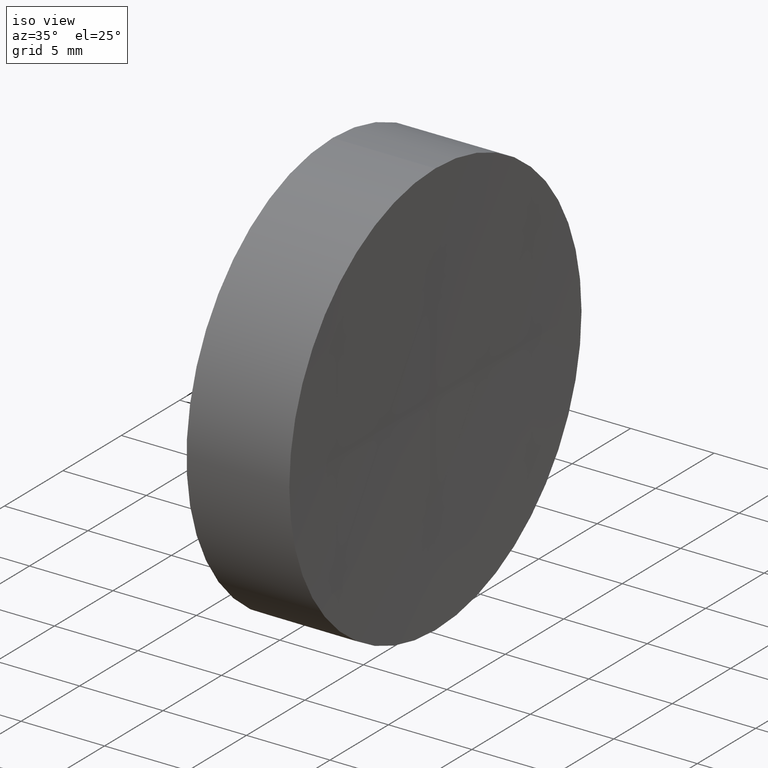
[diagram: clean part render]
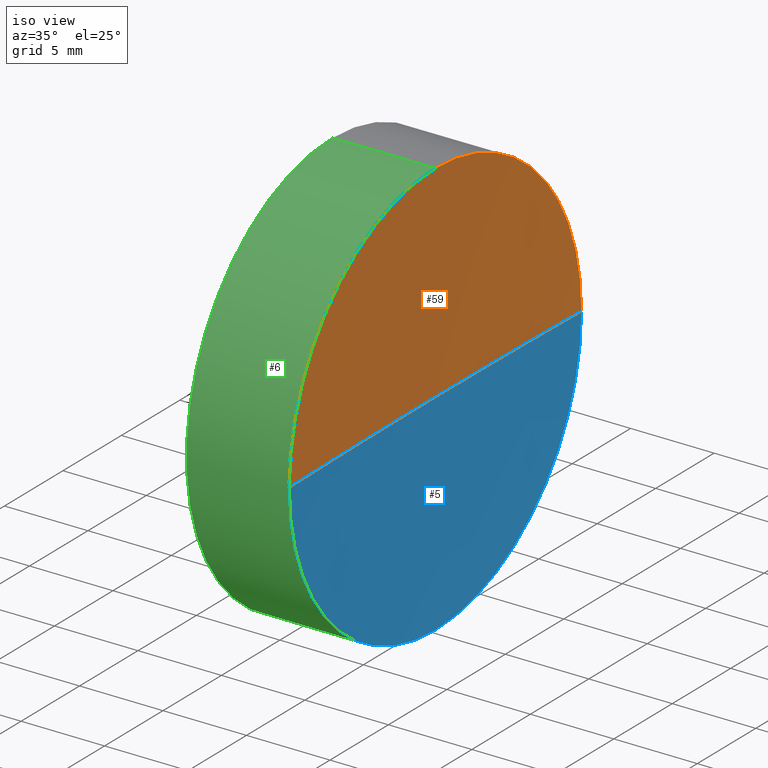
[diagram: same view with three faces highlighted in distinct colors, each labeled with its STEP entity id]
A machine part, iso view with three faces highlighted in distinct colors.
Their STEP definitions:

[orange] entity #59 — the highlighted spherical surface has radius 500 mm.
#4 = CIRCLE ( 'NONE', #9, 500.0000000000000000 ) ;
#8 = EDGE_CURVE ( 'NONE', #36, #23, #4, .T. ) ;
#9 = AXIS2_PLACEMENT_3D ( 'NONE', #10, #167, #150 ) ;
#10 = CARTESIAN_POINT ( 'NONE',  ( 621.0926555117259800, 69.37802112337145400, 0.0000000000000000000 ) ) ;
#12 = SPHERICAL_SURFACE ( 'NONE', #81, 500.0000000000000000 ) ;
#14 = DIRECTION ( 'NONE',  ( 0.0000000000000000000, 0.0000000000000000000, 1.000000000000000000 ) ) ;
#23 = VERTEX_POINT ( 'NONE', #180 ) ;
#29 = DIRECTION ( 'NONE',  ( -1.000000000000000000, -0.0000000000000000000, -0.0000000000000000000 ) ) ;
#30 = CARTESIAN_POINT ( 'NONE',  ( 621.0926555117259800, 69.37802112337145400, 0.0000000000000000000 ) ) ;
#34 = CIRCLE ( 'NONE', #116, 12.50000000000002500 ) ;
#36 = VERTEX_POINT ( 'NONE', #64 ) ;
#45 = DIRECTION ( 'NONE',  ( 0.0000000000000000000, 1.000000000000000000, 0.0000000000000000000 ) ) ;
#46 = ORIENTED_EDGE ( 'NONE', *, *, #71, .F. ) ;
#52 = CARTESIAN_POINT ( 'NONE',  ( 121.2489299334208700, 69.37802112337243400, 0.0000000000000000000 ) ) ;
#56 = VERTEX_POINT ( 'NONE', #77 ) ;
#59 = ADVANCED_FACE ( 'NONE', ( #101 ), #12, .F. ) ;
#61 = EDGE_CURVE ( 'NONE', #129, #36, #143, .T. ) ;
#64 = CARTESIAN_POINT ( 'NONE',  ( 121.2489299334208500, 81.87802112337134000, 0.0000000000000000000 ) ) ;
#71 = EDGE_CURVE ( 'NONE', #56, #129, #34, .T. ) ;
#77 = CARTESIAN_POINT ( 'NONE',  ( 121.2489299334208500, 56.87802112337254800, -1.530808498934056000E-015 ) ) ;
#81 = AXIS2_PLACEMENT_3D ( 'NONE', #106, #133, #45 ) ;
#89 = ORIENTED_EDGE ( 'NONE', *, *, #61, .F. ) ;
#98 = CARTESIAN_POINT ( 'NONE',  ( 121.2489299334208700, 69.37802112337243400, 0.0000000000000000000 ) ) ;
#101 = FACE_OUTER_BOUND ( 'NONE', #147, .T. ) ;
#106 = CARTESIAN_POINT ( 'NONE',  ( 621.0926555117259800, 69.37802112337145400, 0.0000000000000000000 ) ) ;
#108 = AXIS2_PLACEMENT_3D ( 'NONE', #98, #152, #14 ) ;
#112 = DIRECTION ( 'NONE',  ( 0.0000000000000000000, 0.0000000000000000000, 1.000000000000000000 ) ) ;
#116 = AXIS2_PLACEMENT_3D ( 'NONE', #52, #29, #112 ) ;
#119 = DIRECTION ( 'NONE',  ( 0.0000000000000000000, 1.224646799147353200E-016, -1.000000000000000000 ) ) ;
#129 = VERTEX_POINT ( 'NONE', #153 ) ;
#133 = DIRECTION ( 'NONE',  ( 0.0000000000000000000, 0.0000000000000000000, -1.000000000000000000 ) ) ;
#143 = CIRCLE ( 'NONE', #108, 12.50000000000002500 ) ;
#144 = ORIENTED_EDGE ( 'NONE', *, *, #160, .T. ) ;
#147 = EDGE_LOOP ( 'NONE', ( #46, #144, #163, #89 ) ) ;
#148 = AXIS2_PLACEMENT_3D ( 'NONE', #30, #119, #174 ) ;
#150 = DIRECTION ( 'NONE',  ( 1.000000000000000000, 0.0000000000000000000, 0.0000000000000000000 ) ) ;
#152 = DIRECTION ( 'NONE',  ( -1.000000000000000000, -0.0000000000000000000, -0.0000000000000000000 ) ) ;
#153 = CARTESIAN_POINT ( 'NONE',  ( 121.2489299334208700, 69.37802112337243400, 12.50000000000002500 ) ) ;
#160 = EDGE_CURVE ( 'NONE', #56, #23, #177, .T. ) ;
#163 = ORIENTED_EDGE ( 'NONE', *, *, #8, .F. ) ;
#167 = DIRECTION ( 'NONE',  ( 0.0000000000000000000, 0.0000000000000000000, 1.000000000000000000 ) ) ;
#174 = DIRECTION ( 'NONE',  ( 0.0000000000000000000, 1.000000000000000000, 1.224646799147353200E-016 ) ) ;
#177 = CIRCLE ( 'NONE', #148, 500.0000000000000000 ) ;
#180 = CARTESIAN_POINT ( 'NONE',  ( 121.0926555117259900, 69.37802112337148200, 0.0000000000000000000 ) ) ;

[blue] entity #5 — the highlighted spherical surface has radius 500 mm.
#4 = CIRCLE ( 'NONE', #9, 500.0000000000000000 ) ;
#5 = ADVANCED_FACE ( 'NONE', ( #158 ), #87, .F. ) ;
#8 = EDGE_CURVE ( 'NONE', #36, #23, #4, .T. ) ;
#9 = AXIS2_PLACEMENT_3D ( 'NONE', #10, #167, #150 ) ;
#10 = CARTESIAN_POINT ( 'NONE',  ( 621.0926555117259800, 69.37802112337145400, 0.0000000000000000000 ) ) ;
#18 = EDGE_LOOP ( 'NONE', ( #33, #139, #54, #132 ) ) ;
#21 = EDGE_CURVE ( 'NONE', #123, #56, #99, .T. ) ;
#23 = VERTEX_POINT ( 'NONE', #180 ) ;
#25 = DIRECTION ( 'NONE',  ( 0.0000000000000000000, 0.0000000000000000000, -1.000000000000000000 ) ) ;
#26 = DIRECTION ( 'NONE',  ( -1.000000000000000000, -0.0000000000000000000, -0.0000000000000000000 ) ) ;
#30 = CARTESIAN_POINT ( 'NONE',  ( 621.0926555117259800, 69.37802112337145400, 0.0000000000000000000 ) ) ;
#33 = ORIENTED_EDGE ( 'NONE', *, *, #160, .F. ) ;
#36 = VERTEX_POINT ( 'NONE', #64 ) ;
#48 = CARTESIAN_POINT ( 'NONE',  ( 621.0926555117259800, 69.37802112337145400, 0.0000000000000000000 ) ) ;
#53 = AXIS2_PLACEMENT_3D ( 'NONE', #117, #26, #105 ) ;
#54 = ORIENTED_EDGE ( 'NONE', *, *, #135, .F. ) ;
#56 = VERTEX_POINT ( 'NONE', #77 ) ;
#64 = CARTESIAN_POINT ( 'NONE',  ( 121.2489299334208500, 81.87802112337134000, 0.0000000000000000000 ) ) ;
#66 = DIRECTION ( 'NONE',  ( 0.0000000000000000000, 1.000000000000000000, 0.0000000000000000000 ) ) ;
#70 = DIRECTION ( 'NONE',  ( 0.0000000000000000000, 0.0000000000000000000, 1.000000000000000000 ) ) ;
#77 = CARTESIAN_POINT ( 'NONE',  ( 121.2489299334208500, 56.87802112337254800, -1.530808498934056000E-015 ) ) ;
#78 = DIRECTION ( 'NONE',  ( -1.000000000000000000, -0.0000000000000000000, -0.0000000000000000000 ) ) ;
#82 = CARTESIAN_POINT ( 'NONE',  ( 121.2489299334208700, 69.37802112337243400, -12.50000000000002500 ) ) ;
#87 = SPHERICAL_SURFACE ( 'NONE', #156, 500.0000000000000000 ) ;
#97 = CARTESIAN_POINT ( 'NONE',  ( 121.2489299334208700, 69.37802112337243400, 0.0000000000000000000 ) ) ;
#99 = CIRCLE ( 'NONE', #53, 12.50000000000002500 ) ;
#105 = DIRECTION ( 'NONE',  ( 0.0000000000000000000, 0.0000000000000000000, 1.000000000000000000 ) ) ;
#117 = CARTESIAN_POINT ( 'NONE',  ( 121.2489299334208700, 69.37802112337243400, 0.0000000000000000000 ) ) ;
#119 = DIRECTION ( 'NONE',  ( 0.0000000000000000000, 1.224646799147353200E-016, -1.000000000000000000 ) ) ;
#123 = VERTEX_POINT ( 'NONE', #82 ) ;
#128 = AXIS2_PLACEMENT_3D ( 'NONE', #97, #78, #70 ) ;
#132 = ORIENTED_EDGE ( 'NONE', *, *, #8, .T. ) ;
#135 = EDGE_CURVE ( 'NONE', #36, #123, #145, .T. ) ;
#139 = ORIENTED_EDGE ( 'NONE', *, *, #21, .F. ) ;
#145 = CIRCLE ( 'NONE', #128, 12.50000000000002500 ) ;
#148 = AXIS2_PLACEMENT_3D ( 'NONE', #30, #119, #174 ) ;
#150 = DIRECTION ( 'NONE',  ( 1.000000000000000000, 0.0000000000000000000, 0.0000000000000000000 ) ) ;
#156 = AXIS2_PLACEMENT_3D ( 'NONE', #48, #25, #66 ) ;
#158 = FACE_OUTER_BOUND ( 'NONE', #18, .T. ) ;
#160 = EDGE_CURVE ( 'NONE', #56, #23, #177, .T. ) ;
#167 = DIRECTION ( 'NONE',  ( 0.0000000000000000000, 0.0000000000000000000, 1.000000000000000000 ) ) ;
#174 = DIRECTION ( 'NONE',  ( 0.0000000000000000000, 1.000000000000000000, 1.224646799147353200E-016 ) ) ;
#177 = CIRCLE ( 'NONE', #148, 500.0000000000000000 ) ;
#180 = CARTESIAN_POINT ( 'NONE',  ( 121.0926555117259900, 69.37802112337148200, 0.0000000000000000000 ) ) ;

[green] entity #6 — the highlighted cylindrical surface (partial cylindrical patch) has radius 12.5 mm, axis along (-1, -0, -0).
#1 = CARTESIAN_POINT ( 'NONE',  ( 115.0926555349195200, 69.37802112337243400, -12.49999999999999600 ) ) ;
#6 = ADVANCED_FACE ( 'NONE', ( #107 ), #186, .T. ) ;
#11 = DIRECTION ( 'NONE',  ( -1.000000000000000000, -0.0000000000000000000, -0.0000000000000000000 ) ) ;
#13 = VERTEX_POINT ( 'NONE', #103 ) ;
#19 = EDGE_CURVE ( 'NONE', #94, #13, #79, .T. ) ;
#21 = EDGE_CURVE ( 'NONE', #123, #56, #99, .T. ) ;
#26 = DIRECTION ( 'NONE',  ( -1.000000000000000000, -0.0000000000000000000, -0.0000000000000000000 ) ) ;
#28 = CARTESIAN_POINT ( 'NONE',  ( 108.9851430021651000, 69.37802112337243400, 12.50000000000001100 ) ) ;
#29 = DIRECTION ( 'NONE',  ( -1.000000000000000000, -0.0000000000000000000, -0.0000000000000000000 ) ) ;
#32 = VECTOR ( 'NONE', #124, 1000.000000000000000 ) ;
#34 = CIRCLE ( 'NONE', #116, 12.50000000000002500 ) ;
#37 = DIRECTION ( 'NONE',  ( -1.000000000000000000, -0.0000000000000000000, -0.0000000000000000000 ) ) ;
#52 = CARTESIAN_POINT ( 'NONE',  ( 121.2489299334208700, 69.37802112337243400, 0.0000000000000000000 ) ) ;
#53 = AXIS2_PLACEMENT_3D ( 'NONE', #117, #26, #105 ) ;
#56 = VERTEX_POINT ( 'NONE', #77 ) ;
#60 = LINE ( 'NONE', #155, #32 ) ;
#63 = AXIS2_PLACEMENT_3D ( 'NONE', #92, #93, #104 ) ;
#65 = ORIENTED_EDGE ( 'NONE', *, *, #21, .T. ) ;
#71 = EDGE_CURVE ( 'NONE', #56, #129, #34, .T. ) ;
#73 = AXIS2_PLACEMENT_3D ( 'NONE', #149, #11, #168 ) ;
#76 = EDGE_CURVE ( 'NONE', #129, #13, #136, .T. ) ;
#77 = CARTESIAN_POINT ( 'NONE',  ( 121.2489299334208500, 56.87802112337254800, -1.530808498934056000E-015 ) ) ;
#79 = CIRCLE ( 'NONE', #63, 12.49999999999999600 ) ;
#82 = CARTESIAN_POINT ( 'NONE',  ( 121.2489299334208700, 69.37802112337243400, -12.50000000000002500 ) ) ;
#92 = CARTESIAN_POINT ( 'NONE',  ( 115.0926555349195200, 69.37802112337243400, 0.0000000000000000000 ) ) ;
#93 = DIRECTION ( 'NONE',  ( -1.000000000000000000, -0.0000000000000000000, -0.0000000000000000000 ) ) ;
#94 = VERTEX_POINT ( 'NONE', #1 ) ;
#99 = CIRCLE ( 'NONE', #53, 12.50000000000002500 ) ;
#103 = CARTESIAN_POINT ( 'NONE',  ( 115.0926555349195200, 69.37802112337243400, 12.49999999999999600 ) ) ;
#104 = DIRECTION ( 'NONE',  ( 0.0000000000000000000, 0.0000000000000000000, 1.000000000000000000 ) ) ;
#105 = DIRECTION ( 'NONE',  ( 0.0000000000000000000, 0.0000000000000000000, 1.000000000000000000 ) ) ;
#107 = FACE_OUTER_BOUND ( 'NONE', #131, .T. ) ;
#112 = DIRECTION ( 'NONE',  ( 0.0000000000000000000, 0.0000000000000000000, 1.000000000000000000 ) ) ;
#116 = AXIS2_PLACEMENT_3D ( 'NONE', #52, #29, #112 ) ;
#117 = CARTESIAN_POINT ( 'NONE',  ( 121.2489299334208700, 69.37802112337243400, 0.0000000000000000000 ) ) ;
#123 = VERTEX_POINT ( 'NONE', #82 ) ;
#124 = DIRECTION ( 'NONE',  ( -1.000000000000000000, -0.0000000000000000000, -0.0000000000000000000 ) ) ;
#125 = EDGE_CURVE ( 'NONE', #123, #94, #60, .T. ) ;
#129 = VERTEX_POINT ( 'NONE', #153 ) ;
#131 = EDGE_LOOP ( 'NONE', ( #137, #65, #178, #165, #179 ) ) ;
#136 = LINE ( 'NONE', #28, #142 ) ;
#137 = ORIENTED_EDGE ( 'NONE', *, *, #125, .F. ) ;
#142 = VECTOR ( 'NONE', #37, 1000.000000000000000 ) ;
#149 = CARTESIAN_POINT ( 'NONE',  ( 108.9851430021651000, 69.37802112337243400, 0.0000000000000000000 ) ) ;
#153 = CARTESIAN_POINT ( 'NONE',  ( 121.2489299334208700, 69.37802112337243400, 12.50000000000002500 ) ) ;
#155 = CARTESIAN_POINT ( 'NONE',  ( 108.9851430021651000, 69.37802112337243400, -12.50000000000001100 ) ) ;
#165 = ORIENTED_EDGE ( 'NONE', *, *, #76, .T. ) ;
#168 = DIRECTION ( 'NONE',  ( 0.0000000000000000000, 0.0000000000000000000, 1.000000000000000000 ) ) ;
#178 = ORIENTED_EDGE ( 'NONE', *, *, #71, .T. ) ;
#179 = ORIENTED_EDGE ( 'NONE', *, *, #19, .F. ) ;
#186 = CYLINDRICAL_SURFACE ( 'NONE', #73, 12.50000000000001100 ) ;